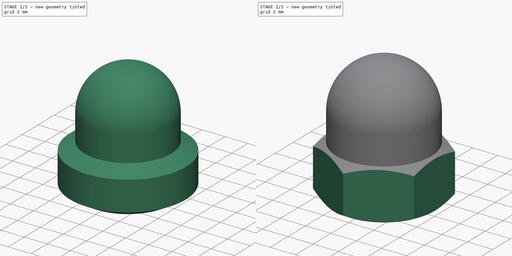
[diagram: build sequence overview — one tinted view per stage of 2, left to right]
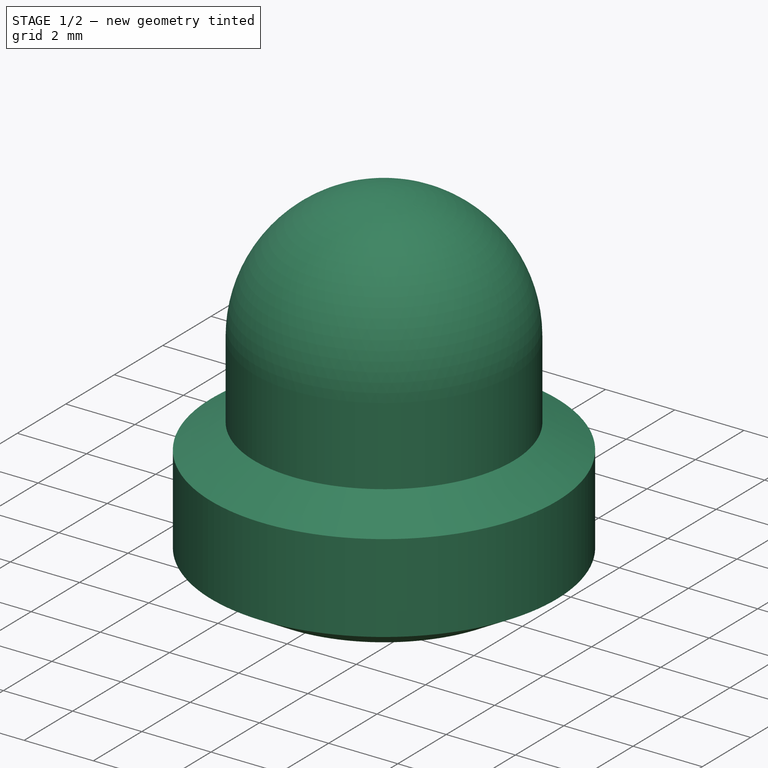
[diagram: stage 1 of 2 — iso view after this stage's code; geometry added in this stage tinted green]
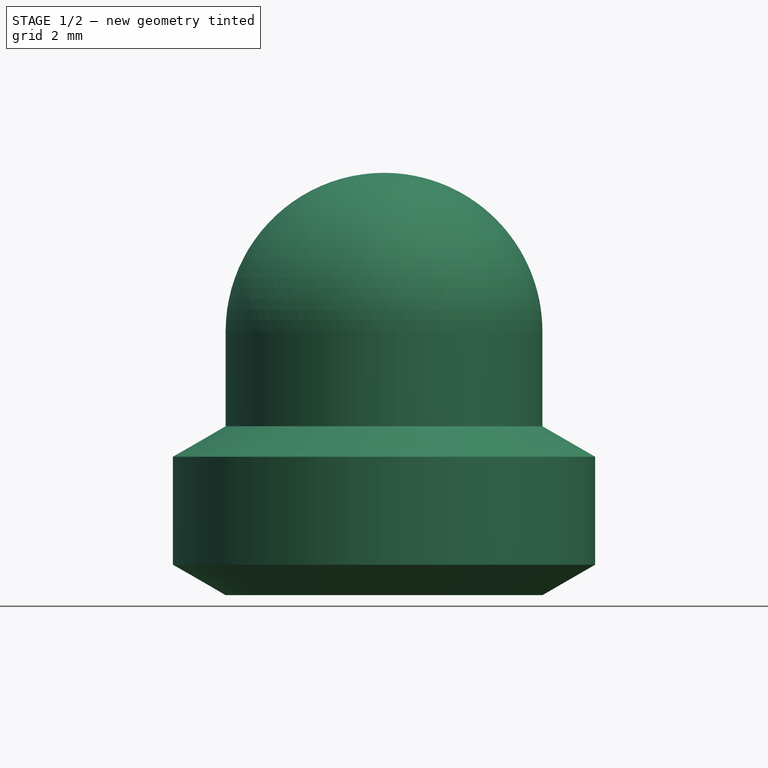
[diagram: stage 1 of 2 — front view after this stage's code; geometry added in this stage tinted green]
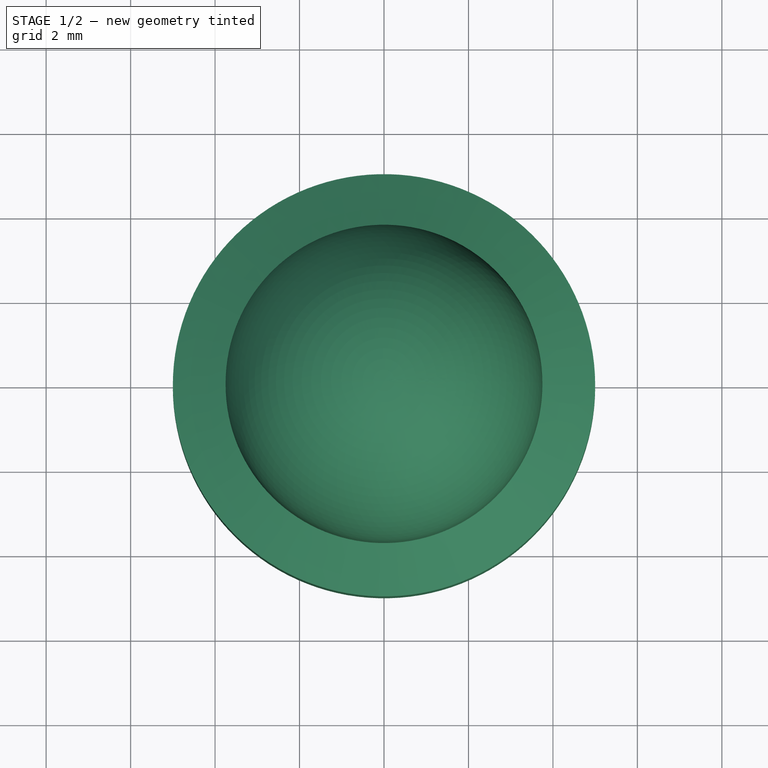
[diagram: stage 1 of 2 — top view after this stage's code; geometry added in this stage tinted green]
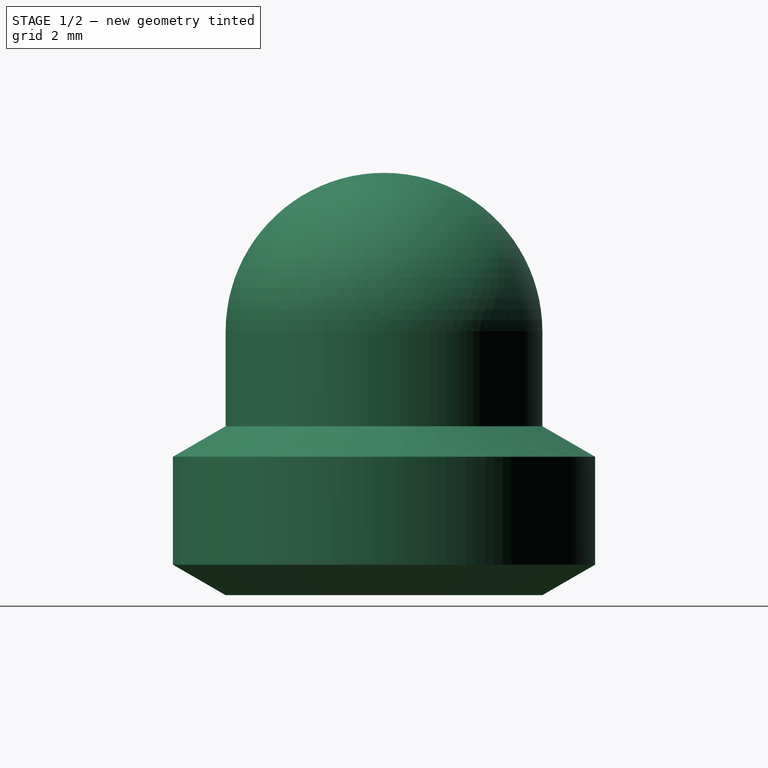
[diagram: stage 1 of 2 — right view after this stage's code; geometry added in this stage tinted green]
FCSTD DOCUMENT  (FreeCAD 0.14R3700 (Git))
Label: Hutmutter_DIN_1587-M5
License: CC-BY 3.0
LicenseURL: http://creativecommons.org/licenses/by/3.0/
objects: Sketcher::SketchObject×2, PartDesign::Revolution×1, PartDesign::Pocket×1, Part::Feature×1
note: 7 computed .brp shape members not serialized (recipe doc carries the construction recipe); baked Part::Feature solids carry a one-line shape summary decoded from their .brp

FEATURE [Sketcher::SketchObject] Sketch
  Placement = pos=(0,0,0) rot=(1,0,0;1.5708rad)
  sketch-geometry (9):
    g0: LineSegment StartX=2.1 StartY=0 StartZ=0 EndX=3.75 EndY=0 EndZ=0
    g1: LineSegment StartX=3.75 StartY=0 StartZ=0 EndX=5 EndY=0.721688 EndZ=0
    g2: LineSegment StartX=5 StartY=0.721688 StartZ=0 EndX=5 EndY=3.27831 EndZ=0
    g3: LineSegment StartX=5 StartY=3.27831 StartZ=0 EndX=3.75 EndY=4 EndZ=0
    g4: LineSegment StartX=3.75 StartY=4 StartZ=0 EndX=3.75 EndY=6.25 EndZ=0
    g5: ArcOfCircle CenterX=0 CenterY=6.25 CenterZ=0 NormalX=0 NormalY=0 NormalZ=1 Radius=3.75 StartAngle=0 EndAngle=1.5708
    g6: LineSegment StartX=0 StartY=10 StartZ=0 EndX=0 EndY=5.6 EndZ=0
    g7: LineSegment StartX=0 StartY=5.6 StartZ=0 EndX=2.1 EndY=5.6 EndZ=0
    g8: LineSegment StartX=2.1 StartY=5.6 StartZ=0 EndX=2.1 EndY=0 EndZ=0
  constraints (27):
    c: PointOnObject(g0,g-1)
    c: Horizontal(g0)
    c: Coincident(g0,g1)
    c: Coincident(g1,g2)
    c: Vertical(g2)
    c: Coincident(g2,g3)
    c: Coincident(g3,g4)
    c: Vertical(g4)
    c: Tangent(g4,g5)
    c: Coincident(g5,g6)
    c: Vertical(g6)
    c: Coincident(g6,g7)
    c: Horizontal(g7)
    c: Coincident(g7,g8)
    c: Vertical(g8)
    c: Coincident(g0,g8)
    c: PointOnObject(g6,g-2)
    c: PointOnObject(g5,g6)
    c: Equal(g1,g3)
    c: Radius(g5) = 3.75
    c: DistanceY(g8) = -5.6
    c: DistanceX(g-1,g0) = 2.1
    c: Angle(g1,g0) = 2.61799
    c: DistanceX(g-1,g1) = 5
    c: Angle(g3,g4) = 2.0944
    c: DistanceY(g3,g0) = -4
    c: DistanceY(g-1,g5) = 10
FEATURE [PartDesign::Revolution] Revolution
  Angle = 360
  Axis = (0,0,1)
  Base = (0,0,0)
  Placement = pos=(0,0,0) rot=(1,0,0;1.5708rad)
  ReferenceAxis = -> Sketch [V_Axis]
  Reversed = true
  Sketch = -> Sketch
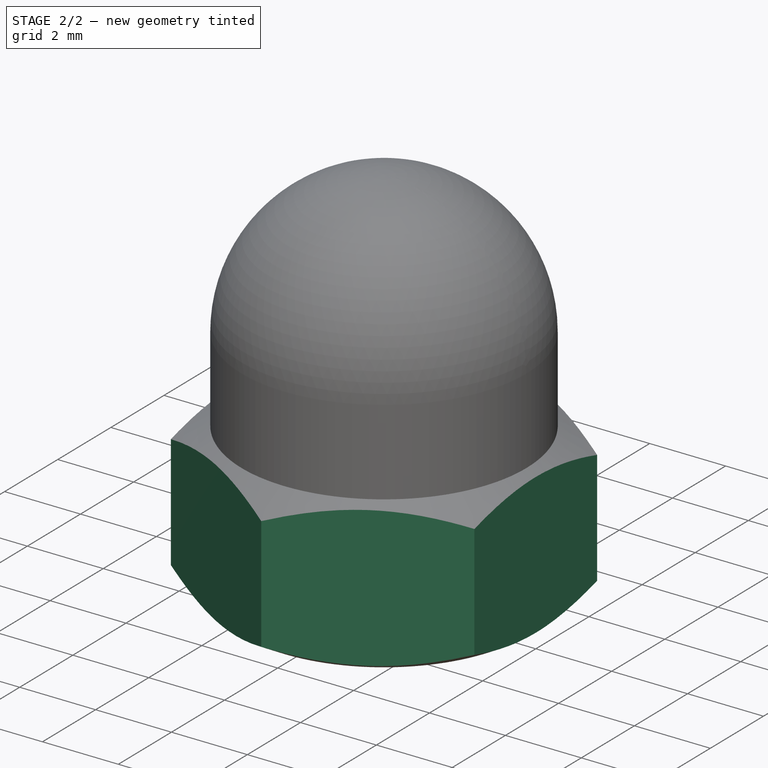
[diagram: stage 2 of 2 — iso view after this stage's code; geometry added in this stage tinted green]
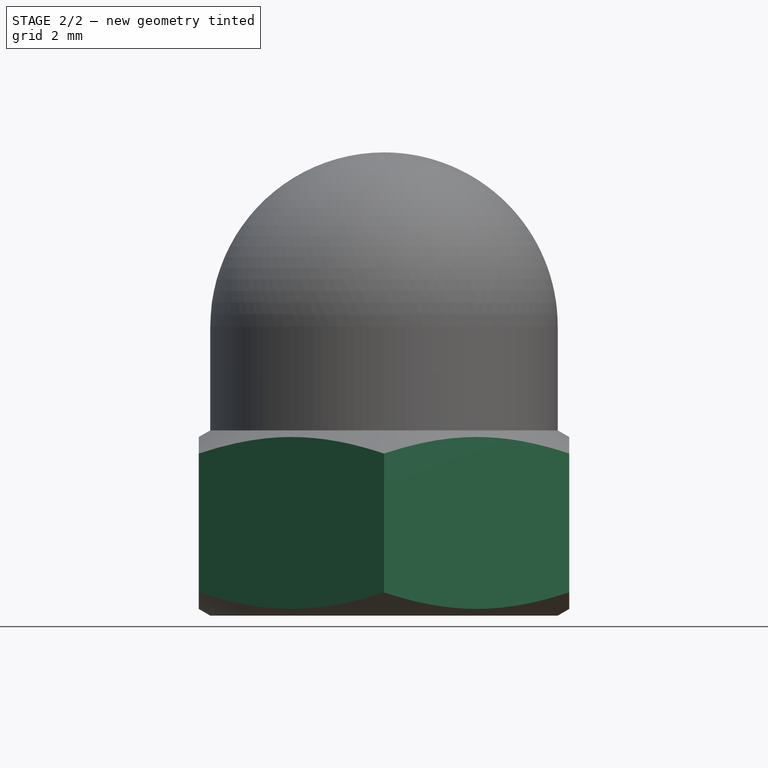
[diagram: stage 2 of 2 — front view after this stage's code; geometry added in this stage tinted green]
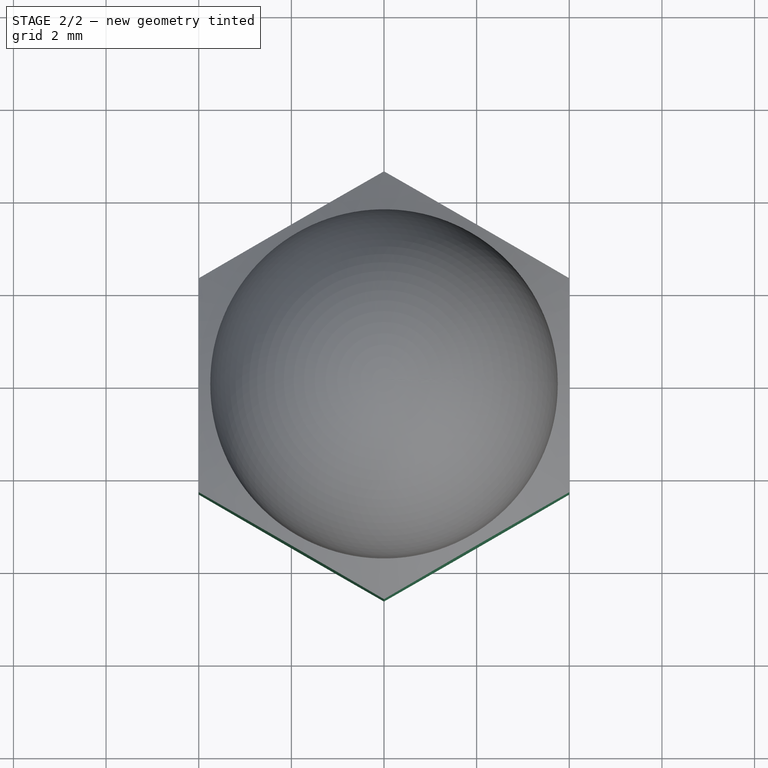
[diagram: stage 2 of 2 — top view after this stage's code; geometry added in this stage tinted green]
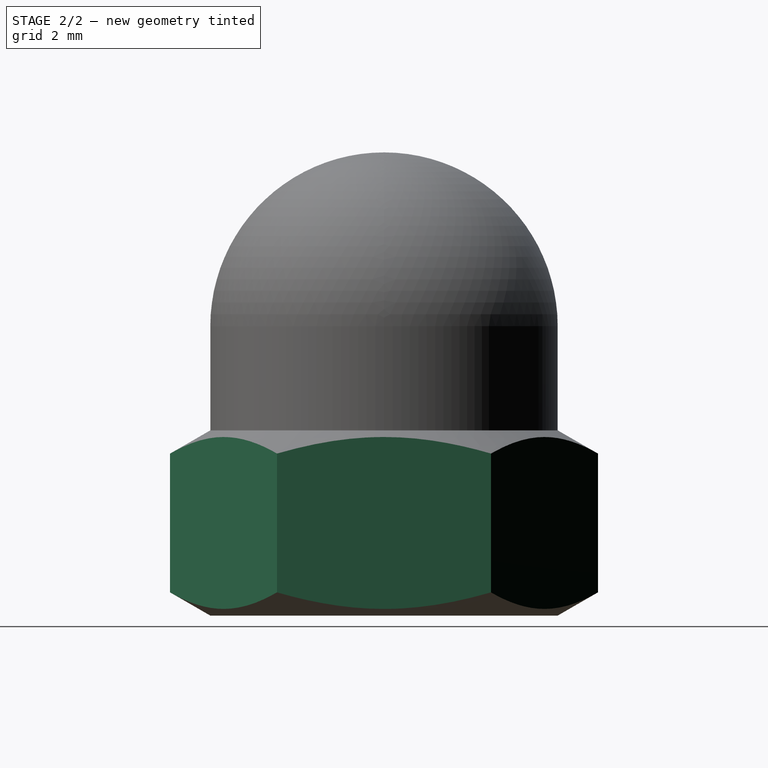
[diagram: stage 2 of 2 — right view after this stage's code; geometry added in this stage tinted green]
FEATURE [Sketcher::SketchObject] Sketch001
  Placement = pos=(0,0,0) rot=(1,0,0;3.14159rad)
  Support = -> Revolution [Face1]
  sketch-geometry (7):
    g0: LineSegment StartX=-4 StartY=2.3094 StartZ=0 EndX=-4 EndY=-2.3094 EndZ=0
    g1: LineSegment StartX=-4 StartY=-2.3094 StartZ=0 EndX=0 EndY=-4.6188 EndZ=0
    g2: LineSegment StartX=0 StartY=-4.6188 StartZ=0 EndX=4 EndY=-2.3094 EndZ=0
    g3: LineSegment StartX=4 StartY=-2.3094 StartZ=0 EndX=4 EndY=2.3094 EndZ=0
    g4: LineSegment StartX=4 StartY=2.3094 StartZ=0 EndX=0 EndY=4.6188 EndZ=0
    g5: LineSegment StartX=0 StartY=4.6188 StartZ=0 EndX=-4 EndY=2.3094 EndZ=0
    g6: Circle CenterX=0 CenterY=0 CenterZ=0 NormalX=0 NormalY=0 NormalZ=1 Radius=5
  constraints (20):
    c: Vertical(g0)
    c: Coincident(g0,g1)
    c: Coincident(g1,g2)
    c: Coincident(g2,g3)
    c: Vertical(g3)
    c: Coincident(g3,g4)
    c: PointOnObject(g4,g-2)
    c: Coincident(g4,g5)
    c: Coincident(g5,g0)
    c: PointOnObject(g1,g-2)
    c: Equal(g5,g0)
    c: Equal(g0,g1)
    c: Equal(g1,g2)
    c: Equal(g2,g3)
    c: Equal(g3,g4)
    c: Angle(g4,g3) = 2.0944
    c: Symmetric(g4,g1,g-1)
    c: DistanceX(g3,g0) = -8
    c: Coincident(g6,g-1)
    c: Radius(g6) = 5
FEATURE [PartDesign::Pocket] Pocket  label="Hutmutter DIN 1587 - M5 #"
  Length = 4
  Placement = pos=(0,0,0) rot=(1,0,0;1.5708rad)
  Sketch = -> Sketch001
  Type = 0
FEATURE [Part::Feature] Pocket001  label="Hutmutter DIN 1587 - M5 #001"
  Placement = pos=(0,0,0) rot=(1,0,0;1.5708rad)
  shape: bbox 9.238 x 9.238 x 10 mm, 13 faces (baked)
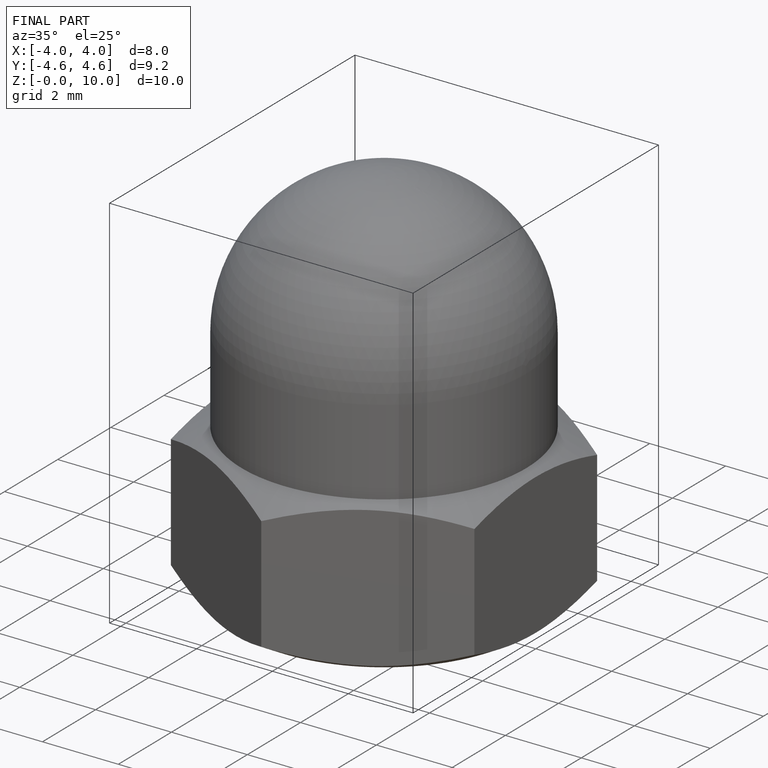
[diagram: finished part — iso view with bounding-box wireframe]
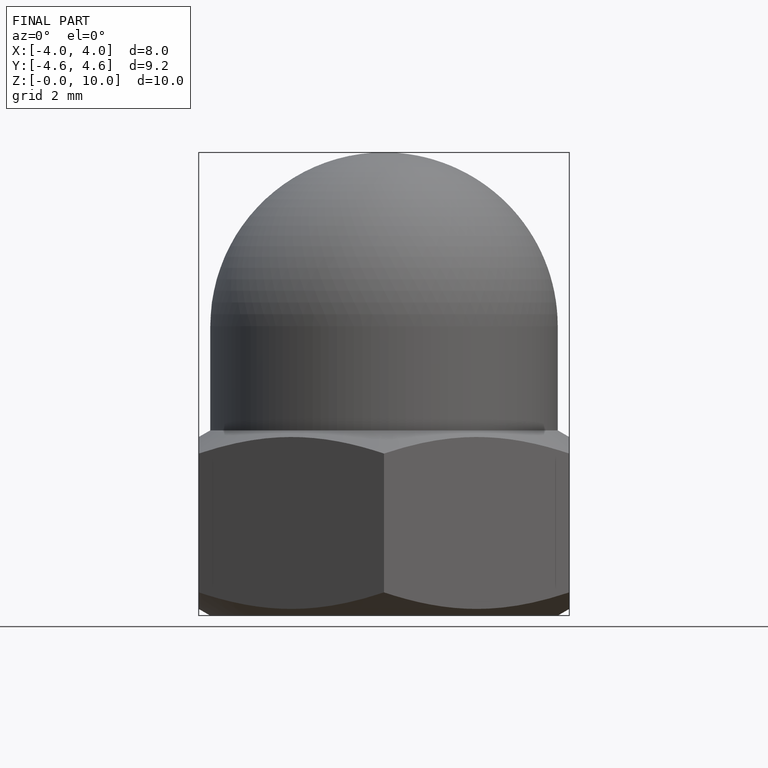
[diagram: finished part — front view with bounding-box wireframe]
